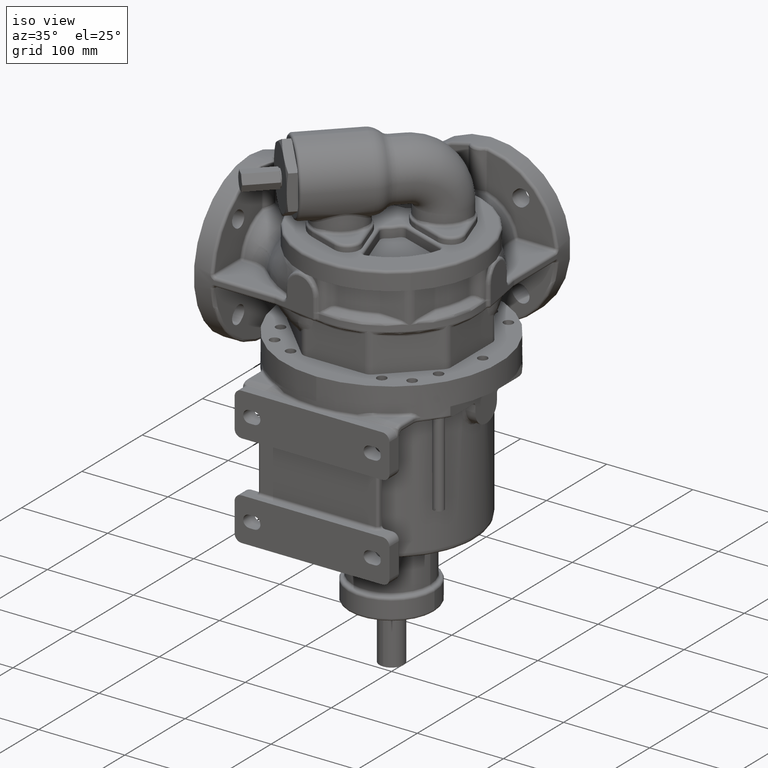
[diagram: clean part render]
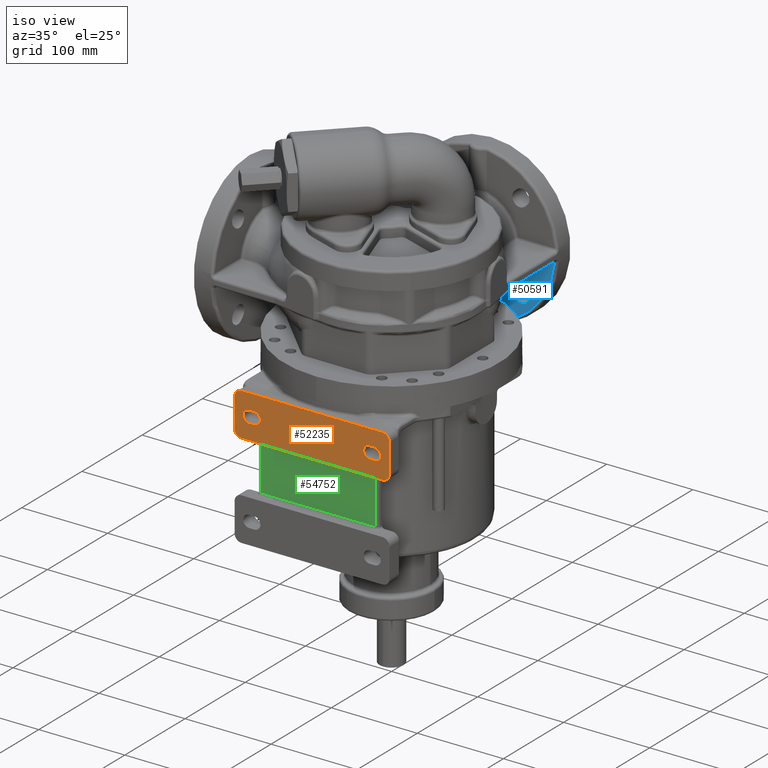
[diagram: same view with three faces highlighted in distinct colors, each labeled with its STEP entity id]
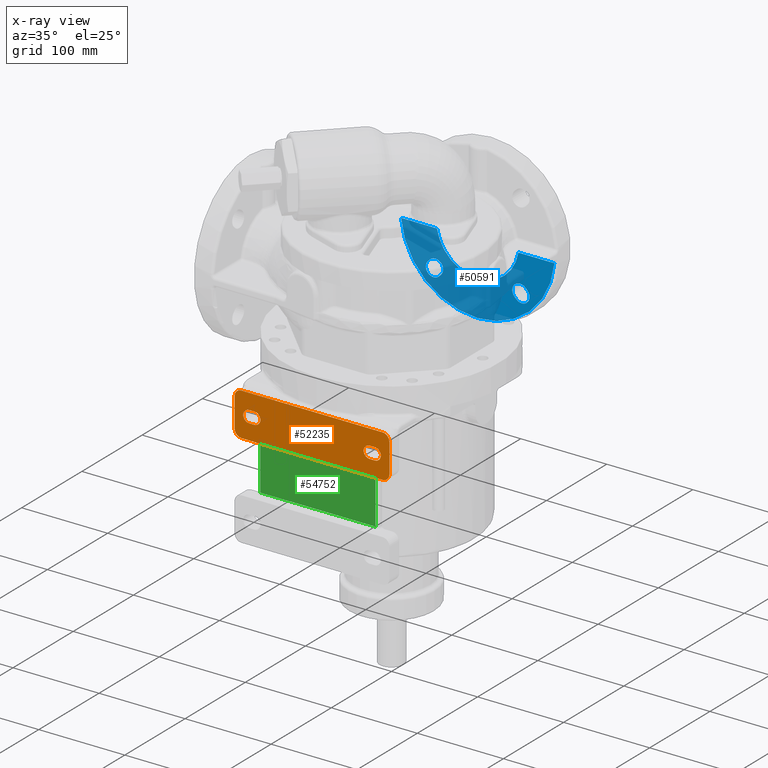
[diagram: x-ray of the same camera — body ghosted, the three highlighted faces saturated]
A machine part, iso view with three faces highlighted in distinct colors.
The next image is the same camera in x-ray (body ghosted, the three faces saturated) — at least one of them is partly hidden behind the body in this view.
Their STEP definitions:

[orange] entity #52235 — the highlighted planar face has unit normal (0, -1, 0).
#14213=DIRECTION('',(0.E0,0.E0,-1.E0));
#14214=VECTOR('',#14213,3.4E1);
#14215=CARTESIAN_POINT('',(-9.E1,-1.32E2,-1.5E1));
#14216=LINE('',#14215,#14214);
#14294=CARTESIAN_POINT('',(-7.3E1,-1.32E2,-3.2E1));
#14295=DIRECTION('',(0.E0,1.E0,0.E0));
#14296=DIRECTION('',(0.E0,0.E0,-1.E0));
#14297=AXIS2_PLACEMENT_3D('',#14294,#14295,#14296);
#14299=DIRECTION('',(-1.E0,0.E0,0.E0));
#14300=VECTOR('',#14299,6.E0);
#14301=CARTESIAN_POINT('',(-6.7E1,-1.32E2,-3.9E1));
#14302=LINE('',#14301,#14300);
#14303=CARTESIAN_POINT('',(-6.7E1,-1.32E2,-3.2E1));
#14304=DIRECTION('',(0.E0,1.E0,0.E0));
#14305=DIRECTION('',(0.E0,0.E0,1.E0));
#14306=AXIS2_PLACEMENT_3D('',#14303,#14304,#14305);
#14308=DIRECTION('',(1.E0,0.E0,0.E0));
#14309=VECTOR('',#14308,6.E0);
#14310=CARTESIAN_POINT('',(-7.3E1,-1.32E2,-2.5E1));
#14311=LINE('',#14310,#14309);
#14312=DIRECTION('',(-1.E0,0.E0,0.E0));
#14313=VECTOR('',#14312,6.E0);
#14314=CARTESIAN_POINT('',(7.3E1,-1.32E2,-3.9E1));
#14315=LINE('',#14314,#14313);
#14316=CARTESIAN_POINT('',(7.3E1,-1.32E2,-3.2E1));
#14317=DIRECTION('',(0.E0,1.E0,0.E0));
#14318=DIRECTION('',(0.E0,0.E0,1.E0));
#14319=AXIS2_PLACEMENT_3D('',#14316,#14317,#14318);
#14321=DIRECTION('',(1.E0,0.E0,0.E0));
#14322=VECTOR('',#14321,6.E0);
#14323=CARTESIAN_POINT('',(6.7E1,-1.32E2,-2.5E1));
#14324=LINE('',#14323,#14322);
#14325=CARTESIAN_POINT('',(6.7E1,-1.32E2,-3.2E1));
#14326=DIRECTION('',(0.E0,1.E0,0.E0));
#14327=DIRECTION('',(0.E0,0.E0,-1.E0));
#14328=AXIS2_PLACEMENT_3D('',#14325,#14326,#14327);
#14330=DIRECTION('',(0.E0,0.E0,1.E0));
#14331=VECTOR('',#14330,3.4E1);
#14332=CARTESIAN_POINT('',(9.E1,-1.32E2,-4.9E1));
#14333=LINE('',#14332,#14331);
#14411=CARTESIAN_POINT('',(8.2E1,-1.32E2,-1.5E1));
#14412=DIRECTION('',(0.E0,1.E0,0.E0));
#14413=DIRECTION('',(0.E0,0.E0,1.E0));
#14414=AXIS2_PLACEMENT_3D('',#14411,#14412,#14413);
#14416=DIRECTION('',(-1.E0,0.E0,0.E0));
#14417=VECTOR('',#14416,1.64E2);
#14418=CARTESIAN_POINT('',(8.2E1,-1.32E2,-7.E0));
#14419=LINE('',#14418,#14417);
#14441=CARTESIAN_POINT('',(-8.2E1,-1.32E2,-1.5E1));
#14442=DIRECTION('',(0.E0,1.E0,0.E0));
#14443=DIRECTION('',(-1.E0,0.E0,0.E0));
#14444=AXIS2_PLACEMENT_3D('',#14441,#14442,#14443);
#16162=DIRECTION('',(1.E0,0.E0,0.E0));
#16163=VECTOR('',#16162,1.64E2);
#16164=CARTESIAN_POINT('',(-8.2E1,-1.32E2,-5.7E1));
#16165=LINE('',#16164,#16163);
#16204=CARTESIAN_POINT('',(8.2E1,-1.32E2,-4.9E1));
#16205=DIRECTION('',(0.E0,1.E0,0.E0));
#16206=DIRECTION('',(1.E0,0.E0,0.E0));
#16207=AXIS2_PLACEMENT_3D('',#16204,#16205,#16206);
#16753=CARTESIAN_POINT('',(-8.2E1,-1.32E2,-4.9E1));
#16754=DIRECTION('',(0.E0,1.E0,0.E0));
#16755=DIRECTION('',(0.E0,0.E0,-1.E0));
#16756=AXIS2_PLACEMENT_3D('',#16753,#16754,#16755);
#20915=CARTESIAN_POINT('',(9.E1,-1.32E2,-4.9E1));
#20916=CARTESIAN_POINT('',(9.E1,-1.32E2,-1.5E1));
#20917=VERTEX_POINT('',#20915);
#20918=VERTEX_POINT('',#20916);
#20919=CARTESIAN_POINT('',(8.2E1,-1.32E2,-7.E0));
#20920=CARTESIAN_POINT('',(-8.2E1,-1.32E2,-7.E0));
#20921=VERTEX_POINT('',#20919);
#20922=VERTEX_POINT('',#20920);
#20923=CARTESIAN_POINT('',(-9.E1,-1.32E2,-1.5E1));
#20924=CARTESIAN_POINT('',(-9.E1,-1.32E2,-4.9E1));
#20925=VERTEX_POINT('',#20923);
#20926=VERTEX_POINT('',#20924);
#20927=CARTESIAN_POINT('',(-8.2E1,-1.32E2,-5.7E1));
#20928=CARTESIAN_POINT('',(8.2E1,-1.32E2,-5.7E1));
#20929=VERTEX_POINT('',#20927);
#20930=VERTEX_POINT('',#20928);
#20963=CARTESIAN_POINT('',(-7.3E1,-1.32E2,-3.9E1));
#20964=CARTESIAN_POINT('',(-7.3E1,-1.32E2,-2.5E1));
#20965=VERTEX_POINT('',#20963);
#20966=VERTEX_POINT('',#20964);
#20967=CARTESIAN_POINT('',(-6.7E1,-1.32E2,-2.5E1));
#20968=VERTEX_POINT('',#20967);
#20969=CARTESIAN_POINT('',(-6.7E1,-1.32E2,-3.9E1));
#20970=VERTEX_POINT('',#20969);
#20971=CARTESIAN_POINT('',(7.3E1,-1.32E2,-3.9E1));
#20972=CARTESIAN_POINT('',(6.7E1,-1.32E2,-3.9E1));
#20973=VERTEX_POINT('',#20971);
#20974=VERTEX_POINT('',#20972);
#20975=CARTESIAN_POINT('',(6.7E1,-1.32E2,-2.5E1));
#20976=VERTEX_POINT('',#20975);
#20977=CARTESIAN_POINT('',(7.3E1,-1.32E2,-2.5E1));
#20978=VERTEX_POINT('',#20977);
#52193=CARTESIAN_POINT('',(0.E0,-1.32E2,0.E0));
#52194=DIRECTION('',(0.E0,-1.E0,0.E0));
#52195=DIRECTION('',(0.E0,0.E0,1.E0));
#52196=AXIS2_PLACEMENT_3D('',#52193,#52194,#52195);
#52197=PLANE('',#52196);
#52199=ORIENTED_EDGE('',*,*,#52198,.F.);
#52201=ORIENTED_EDGE('',*,*,#52200,.T.);
#52203=ORIENTED_EDGE('',*,*,#52202,.F.);
#52205=ORIENTED_EDGE('',*,*,#52204,.T.);
#52206=ORIENTED_EDGE('',*,*,#52173,.F.);
#52208=ORIENTED_EDGE('',*,*,#52207,.T.);
#52210=ORIENTED_EDGE('',*,*,#52209,.F.);
#52212=ORIENTED_EDGE('',*,*,#52211,.T.);
#52213=EDGE_LOOP('',(#52199,#52201,#52203,#52205,#52206,#52208,#52210,#52212));
#52214=FACE_OUTER_BOUND('',#52213,.F.);
#52216=ORIENTED_EDGE('',*,*,#52215,.F.);
#52218=ORIENTED_EDGE('',*,*,#52217,.F.);
#52220=ORIENTED_EDGE('',*,*,#52219,.F.);
#52222=ORIENTED_EDGE('',*,*,#52221,.F.);
#52223=EDGE_LOOP('',(#52216,#52218,#52220,#52222));
#52224=FACE_BOUND('',#52223,.F.);
#52226=ORIENTED_EDGE('',*,*,#52225,.F.);
#52228=ORIENTED_EDGE('',*,*,#52227,.F.);
#52230=ORIENTED_EDGE('',*,*,#52229,.F.);
#52232=ORIENTED_EDGE('',*,*,#52231,.F.);
#52233=EDGE_LOOP('',(#52226,#52228,#52230,#52232));
#52234=FACE_BOUND('',#52233,.F.);
#52235=ADVANCED_FACE('',(#52214,#52224,#52234),#52197,.T.);
#14298=CIRCLE('',#14297,7.E0);
#14307=CIRCLE('',#14306,7.E0);
#14320=CIRCLE('',#14319,7.E0);
#14329=CIRCLE('',#14328,7.E0);
#14415=CIRCLE('',#14414,8.E0);
#14445=CIRCLE('',#14444,8.E0);
#16208=CIRCLE('',#16207,8.E0);
#16757=CIRCLE('',#16756,8.E0);
#52173=EDGE_CURVE('',#20925,#20926,#14216,.T.);
#52198=EDGE_CURVE('',#20917,#20918,#14333,.T.);
#52200=EDGE_CURVE('',#20917,#20930,#16208,.T.);
#52202=EDGE_CURVE('',#20929,#20930,#16165,.T.);
#52204=EDGE_CURVE('',#20929,#20926,#16757,.T.);
#52207=EDGE_CURVE('',#20925,#20922,#14445,.T.);
#52209=EDGE_CURVE('',#20921,#20922,#14419,.T.);
#52211=EDGE_CURVE('',#20921,#20918,#14415,.T.);
#52215=EDGE_CURVE('',#20965,#20966,#14298,.T.);
#52217=EDGE_CURVE('',#20970,#20965,#14302,.T.);
#52219=EDGE_CURVE('',#20968,#20970,#14307,.T.);
#52221=EDGE_CURVE('',#20966,#20968,#14311,.T.);
#52225=EDGE_CURVE('',#20973,#20974,#14315,.T.);
#52227=EDGE_CURVE('',#20978,#20973,#14320,.T.);
#52229=EDGE_CURVE('',#20976,#20978,#14324,.T.);
#52231=EDGE_CURVE('',#20974,#20976,#14329,.T.);

[blue] entity #50591 — the highlighted planar face has unit normal (0, -1, 0).
#9131=CARTESIAN_POINT('',(-8.914174106444E1,1.43E2,6.75E1));
#9153=CARTESIAN_POINT('',(8.914174106444E1,1.43E2,6.75E1));
#12777=CARTESIAN_POINT('',(6.979314321228E-14,1.43E2,7.55E1));
#12778=DIRECTION('',(0.E0,-1.E0,0.E0));
#12779=DIRECTION('',(-9.959971068653E-1,0.E0,-8.938547486033E-2));
#12780=AXIS2_PLACEMENT_3D('',#12777,#12778,#12779);
#12787=CARTESIAN_POINT('',(6.979314321228E-14,1.43E2,7.55E1));
#12788=DIRECTION('',(0.E0,1.E0,0.E0));
#12789=DIRECTION('',(9.860132971833E-1,0.E0,-1.666666666667E-1));
#12790=AXIS2_PLACEMENT_3D('',#12787,#12788,#12789);
#12792=DIRECTION('',(1.E0,0.E0,0.E0));
#12793=VECTOR('',#12792,4.181310279964E1);
#12794=CARTESIAN_POINT('',(4.732863826480E1,1.43E2,6.75E1));
#12795=LINE('',#12794,#12793);
#12796=DIRECTION('',(1.E0,0.E0,0.E0));
#12797=VECTOR('',#12796,4.181310279965E1);
#12798=CARTESIAN_POINT('',(-8.914174106444E1,1.43E2,6.75E1));
#12799=LINE('',#12798,#12797);
#12800=CARTESIAN_POINT('',(-5.126524163602E1,1.43E2,2.423475836398E1));
#12801=DIRECTION('',(0.E0,1.E0,0.E0));
#12802=DIRECTION('',(7.071067811866E-1,0.E0,-7.071067811865E-1));
#12803=AXIS2_PLACEMENT_3D('',#12800,#12801,#12802);
#12805=DIRECTION('',(-7.071067811865E-1,0.E0,-7.071067811865E-1));
#12806=VECTOR('',#12805,3.E0);
#12807=CARTESIAN_POINT('',(-4.277996026179E1,1.43E2,1.999211767686E1));
#12808=LINE('',#12807,#12806);
#12809=CARTESIAN_POINT('',(-4.914392129246E1,1.43E2,2.635607870753E1));
#12810=DIRECTION('',(0.E0,1.E0,0.E0));
#12811=DIRECTION('',(-7.071067811865E-1,0.E0,7.071067811866E-1));
#12812=AXIS2_PLACEMENT_3D('',#12809,#12810,#12811);
#12814=DIRECTION('',(7.071067811865E-1,0.E0,7.071067811866E-1));
#12815=VECTOR('',#12814,3.E0);
#12816=CARTESIAN_POINT('',(-5.762920266670E1,1.43E2,3.059871939465E1));
#12817=LINE('',#12816,#12815);
#12818=CARTESIAN_POINT('',(5.126524163602E1,1.43E2,2.423475836398E1));
#12819=DIRECTION('',(0.E0,1.E0,0.E0));
#12820=DIRECTION('',(7.071067811866E-1,0.E0,7.071067811865E-1));
#12821=AXIS2_PLACEMENT_3D('',#12818,#12819,#12820);
#12823=DIRECTION('',(7.071067811865E-1,0.E0,-7.071067811865E-1));
#12824=VECTOR('',#12823,3.E0);
#12825=CARTESIAN_POINT('',(5.550788232314E1,1.43E2,3.272003973821E1));
#12826=LINE('',#12825,#12824);
#12827=CARTESIAN_POINT('',(4.914392129247E1,1.43E2,2.635607870754E1));
#12828=DIRECTION('',(0.E0,1.E0,0.E0));
#12829=DIRECTION('',(-7.071067811865E-1,0.E0,-7.071067811866E-1));
#12830=AXIS2_PLACEMENT_3D('',#12827,#12828,#12829);
#12832=DIRECTION('',(-7.071067811865E-1,0.E0,7.071067811865E-1));
#12833=VECTOR('',#12832,3.E0);
#12834=CARTESIAN_POINT('',(4.490128060535E1,1.43E2,1.787079733330E1));
#12835=LINE('',#12834,#12833);
#21528=VERTEX_POINT('',#9131);
#21625=VERTEX_POINT('',#9153);
#21792=CARTESIAN_POINT('',(4.732863826480E1,1.43E2,6.75E1));
#21793=VERTEX_POINT('',#21792);
#21796=CARTESIAN_POINT('',(-4.732863826480E1,1.43E2,6.75E1));
#21797=VERTEX_POINT('',#21796);
#22161=CARTESIAN_POINT('',(-4.490128060535E1,1.43E2,1.787079733330E1));
#22163=VERTEX_POINT('',#22161);
#22165=CARTESIAN_POINT('',(-5.762920266670E1,1.43E2,3.059871939465E1));
#22167=VERTEX_POINT('',#22165);
#22169=CARTESIAN_POINT('',(-5.550788232314E1,1.43E2,3.272003973821E1));
#22171=VERTEX_POINT('',#22169);
#22173=CARTESIAN_POINT('',(-4.277996026179E1,1.43E2,1.999211767686E1));
#22175=VERTEX_POINT('',#22173);
#22177=CARTESIAN_POINT('',(5.762920266670E1,1.43E2,3.059871939465E1));
#22179=VERTEX_POINT('',#22177);
#22181=CARTESIAN_POINT('',(4.490128060535E1,1.43E2,1.787079733330E1));
#22183=VERTEX_POINT('',#22181);
#22185=CARTESIAN_POINT('',(4.277996026179E1,1.43E2,1.999211767686E1));
#22187=VERTEX_POINT('',#22185);
#22189=CARTESIAN_POINT('',(5.550788232314E1,1.43E2,3.272003973821E1));
#22191=VERTEX_POINT('',#22189);
#50560=CARTESIAN_POINT('',(6.979314321228E-14,1.43E2,7.55E1));
#50561=DIRECTION('',(0.E0,-1.E0,0.E0));
#50562=DIRECTION('',(0.E0,0.E0,1.E0));
#50563=AXIS2_PLACEMENT_3D('',#50560,#50561,#50562);
#50564=PLANE('',#50563);
#50565=ORIENTED_EDGE('',*,*,#44014,.F.);
#50566=ORIENTED_EDGE('',*,*,#44042,.T.);
#50567=ORIENTED_EDGE('',*,*,#50550,.F.);
#50568=ORIENTED_EDGE('',*,*,#43987,.T.);
#50569=EDGE_LOOP('',(#50565,#50566,#50567,#50568));
#50570=FACE_OUTER_BOUND('',#50569,.F.);
#50572=ORIENTED_EDGE('',*,*,#50571,.F.);
#50574=ORIENTED_EDGE('',*,*,#50573,.F.);
#50576=ORIENTED_EDGE('',*,*,#50575,.F.);
#50578=ORIENTED_EDGE('',*,*,#50577,.F.);
#50579=EDGE_LOOP('',(#50572,#50574,#50576,#50578));
#50580=FACE_BOUND('',#50579,.F.);
#50582=ORIENTED_EDGE('',*,*,#50581,.F.);
#50584=ORIENTED_EDGE('',*,*,#50583,.F.);
#50586=ORIENTED_EDGE('',*,*,#50585,.F.);
#50588=ORIENTED_EDGE('',*,*,#50587,.F.);
#50589=EDGE_LOOP('',(#50582,#50584,#50586,#50588));
#50590=FACE_BOUND('',#50589,.F.);
#50591=ADVANCED_FACE('',(#50570,#50580,#50590),#50564,.T.);
#12781=CIRCLE('',#12780,8.95E1);
#12791=CIRCLE('',#12790,4.8E1);
#12804=CIRCLE('',#12803,9.E0);
#12813=CIRCLE('',#12812,9.E0);
#12822=CIRCLE('',#12821,9.E0);
#12831=CIRCLE('',#12830,9.E0);
#43987=EDGE_CURVE('',#21528,#21797,#12799,.T.);
#44014=EDGE_CURVE('',#21793,#21797,#12791,.T.);
#44042=EDGE_CURVE('',#21793,#21625,#12795,.T.);
#50550=EDGE_CURVE('',#21528,#21625,#12781,.T.);
#50571=EDGE_CURVE('',#22163,#22167,#12804,.T.);
#50573=EDGE_CURVE('',#22175,#22163,#12808,.T.);
#50575=EDGE_CURVE('',#22171,#22175,#12813,.T.);
#50577=EDGE_CURVE('',#22167,#22171,#12817,.T.);
#50581=EDGE_CURVE('',#22179,#22183,#12822,.T.);
#50583=EDGE_CURVE('',#22191,#22179,#12826,.T.);
#50585=EDGE_CURVE('',#22187,#22191,#12831,.T.);
#50587=EDGE_CURVE('',#22183,#22187,#12835,.T.);

[green] entity #54752 — the highlighted planar face has unit normal (0, -1, 0).
#16644=DIRECTION('',(-1.E0,0.E0,0.E0));
#16645=VECTOR('',#16644,1.34E2);
#16646=CARTESIAN_POINT('',(6.7E1,-1.22E2,-6.E1));
#16647=LINE('',#16646,#16645);
#16648=DIRECTION('',(0.E0,0.E0,-1.E0));
#16649=VECTOR('',#16648,5.4E1);
#16650=CARTESIAN_POINT('',(6.7E1,-1.22E2,-6.E1));
#16651=LINE('',#16650,#16649);
#16652=DIRECTION('',(1.E0,0.E0,0.E0));
#16653=VECTOR('',#16652,1.34E2);
#16654=CARTESIAN_POINT('',(-6.7E1,-1.22E2,-1.14E2));
#16655=LINE('',#16654,#16653);
#16656=DIRECTION('',(0.E0,0.E0,1.E0));
#16657=VECTOR('',#16656,5.4E1);
#16658=CARTESIAN_POINT('',(-6.7E1,-1.22E2,-1.14E2));
#16659=LINE('',#16658,#16657);
#20610=CARTESIAN_POINT('',(6.7E1,-1.22E2,-6.E1));
#20611=CARTESIAN_POINT('',(-6.7E1,-1.22E2,-6.E1));
#20612=VERTEX_POINT('',#20610);
#20613=VERTEX_POINT('',#20611);
#20618=CARTESIAN_POINT('',(-6.7E1,-1.22E2,-1.14E2));
#20619=CARTESIAN_POINT('',(6.7E1,-1.22E2,-1.14E2));
#20620=VERTEX_POINT('',#20618);
#20621=VERTEX_POINT('',#20619);
#54739=CARTESIAN_POINT('',(7.E1,-1.22E2,-1.17E2));
#54740=DIRECTION('',(0.E0,-1.E0,0.E0));
#54741=DIRECTION('',(0.E0,0.E0,1.E0));
#54742=AXIS2_PLACEMENT_3D('',#54739,#54740,#54741);
#54743=PLANE('',#54742);
#54745=ORIENTED_EDGE('',*,*,#54744,.F.);
#54747=ORIENTED_EDGE('',*,*,#54746,.T.);
#54748=ORIENTED_EDGE('',*,*,#54706,.F.);
#54749=ORIENTED_EDGE('',*,*,#54730,.T.);
#54750=EDGE_LOOP('',(#54745,#54747,#54748,#54749));
#54751=FACE_OUTER_BOUND('',#54750,.F.);
#54752=ADVANCED_FACE('',(#54751),#54743,.T.);
#54706=EDGE_CURVE('',#20620,#20621,#16655,.T.);
#54730=EDGE_CURVE('',#20620,#20613,#16659,.T.);
#54744=EDGE_CURVE('',#20612,#20613,#16647,.T.);
#54746=EDGE_CURVE('',#20612,#20621,#16651,.T.);